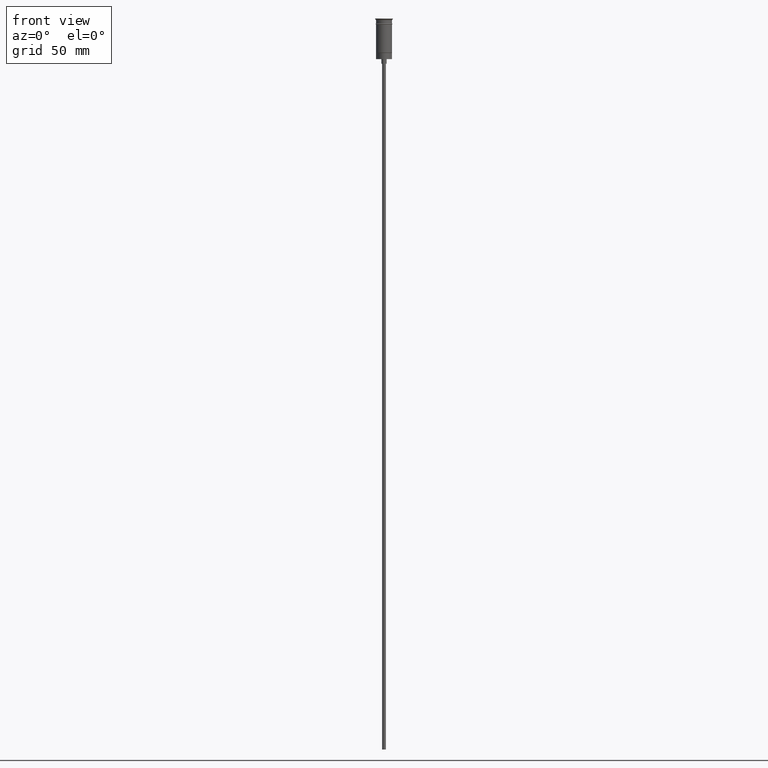
[diagram: clean part render]
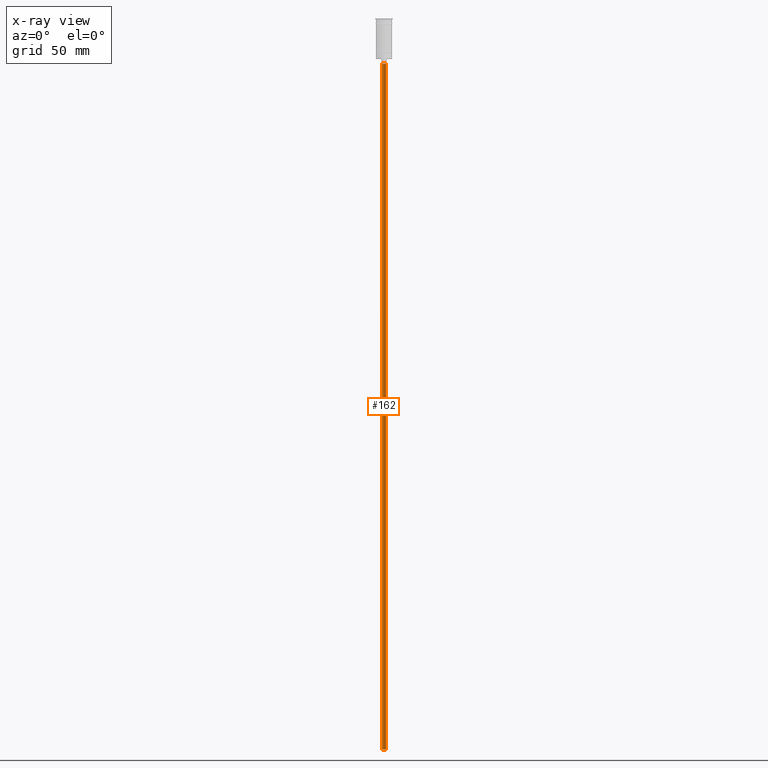
[diagram: x-ray — body ghosted, one internal face saturated and labeled with its STEP entity id]
A machine part, front view, then the same camera in x-ray: the body is ghosted and one INTERNAL B-rep face — a face not visible from any outside direction — is saturated and labeled: STEP entity #162.
In plain terms, the highlighted cylindrical surface (edge-blend (fillet) strip) has radius 1.25 mm, axis along (-0, -0, 1).
Its self-contained STEP definition (entity closure, byte-faithful):
#113 = VERTEX_POINT ( 'NONE', #1468 ) ;
#162 = ADVANCED_FACE ( 'NONE', ( #1399 ), #212, .T. ) ;
#186 = DIRECTION ( 'NONE',  ( -0.000000000000000000, -0.000000000000000000, 1.000000000000000000 ) ) ;
#212 = CYLINDRICAL_SURFACE ( 'NONE', #732, 1.250000000000000000 ) ;
#218 = ORIENTED_EDGE ( 'NONE', *, *, #1391, .T. ) ;
#331 = VECTOR ( 'NONE', #1283, 1000.000000000000000 ) ;
#346 = CARTESIAN_POINT ( 'NONE',  ( -1.250000000000000000, 1.530808498934191571E-16, -29.50000000000000000 ) ) ;
#410 = CARTESIAN_POINT ( 'NONE',  ( 0.000000000000000000, 0.000000000000000000, -476.5000000000000568 ) ) ;
#438 = LINE ( 'NONE', #782, #331 ) ;
#488 = DIRECTION ( 'NONE',  ( 0.000000000000000000, 0.000000000000000000, -1.000000000000000000 ) ) ;
#499 = CARTESIAN_POINT ( 'NONE',  ( -1.250000000000000000, 1.530808498934191571E-16, -476.5000000000000568 ) ) ;
#504 = LINE ( 'NONE', #616, #1407 ) ;
#559 = CARTESIAN_POINT ( 'NONE',  ( 1.250000000000000000, 0.000000000000000000, -476.5000000000000568 ) ) ;
#574 = DIRECTION ( 'NONE',  ( -1.000000000000000000, 0.000000000000000000, 0.000000000000000000 ) ) ;
#610 = CARTESIAN_POINT ( 'NONE',  ( 0.000000000000000000, 0.000000000000000000, -29.50000000000000000 ) ) ;
#616 = CARTESIAN_POINT ( 'NONE',  ( -1.250000000000000000, 1.530808498934191571E-16, -476.5000000000000568 ) ) ;
#671 = DIRECTION ( 'NONE',  ( 1.000000000000000000, 0.000000000000000000, 0.000000000000000000 ) ) ;
#728 = EDGE_CURVE ( 'NONE', #1134, #113, #438, .T. ) ;
#732 = AXIS2_PLACEMENT_3D ( 'NONE', #1054, #186, #671 ) ;
#782 = CARTESIAN_POINT ( 'NONE',  ( 1.250000000000000000, 0.000000000000000000, -476.5000000000000568 ) ) ;
#788 = DIRECTION ( 'NONE',  ( -1.000000000000000000, 0.000000000000000000, 0.000000000000000000 ) ) ;
#801 = ORIENTED_EDGE ( 'NONE', *, *, #815, .T. ) ;
#809 = AXIS2_PLACEMENT_3D ( 'NONE', #410, #1261, #788 ) ;
#815 = EDGE_CURVE ( 'NONE', #833, #113, #1461, .T. ) ;
#833 = VERTEX_POINT ( 'NONE', #346 ) ;
#854 = ORIENTED_EDGE ( 'NONE', *, *, #728, .F. ) ;
#1054 = CARTESIAN_POINT ( 'NONE',  ( 0.000000000000000000, 0.000000000000000000, -476.5000000000000568 ) ) ;
#1101 = DIRECTION ( 'NONE',  ( -0.000000000000000000, -0.000000000000000000, 1.000000000000000000 ) ) ;
#1134 = VERTEX_POINT ( 'NONE', #559 ) ;
#1224 = AXIS2_PLACEMENT_3D ( 'NONE', #610, #488, #574 ) ;
#1251 = EDGE_LOOP ( 'NONE', ( #1605, #218, #801, #854 ) ) ;
#1261 = DIRECTION ( 'NONE',  ( 0.000000000000000000, 0.000000000000000000, -1.000000000000000000 ) ) ;
#1283 = DIRECTION ( 'NONE',  ( -0.000000000000000000, -0.000000000000000000, 1.000000000000000000 ) ) ;
#1391 = EDGE_CURVE ( 'NONE', #1413, #833, #504, .T. ) ;
#1399 = FACE_OUTER_BOUND ( 'NONE', #1251, .T. ) ;
#1407 = VECTOR ( 'NONE', #1101, 1000.000000000000000 ) ;
#1413 = VERTEX_POINT ( 'NONE', #499 ) ;
#1461 = CIRCLE ( 'NONE', #1224, 1.250000000000000000 ) ;
#1468 = CARTESIAN_POINT ( 'NONE',  ( 1.250000000000000000, 0.000000000000000000, -29.50000000000000000 ) ) ;
#1512 = CIRCLE ( 'NONE', #809, 1.250000000000000000 ) ;
#1594 = EDGE_CURVE ( 'NONE', #1413, #1134, #1512, .T. ) ;
#1605 = ORIENTED_EDGE ( 'NONE', *, *, #1594, .F. ) ;